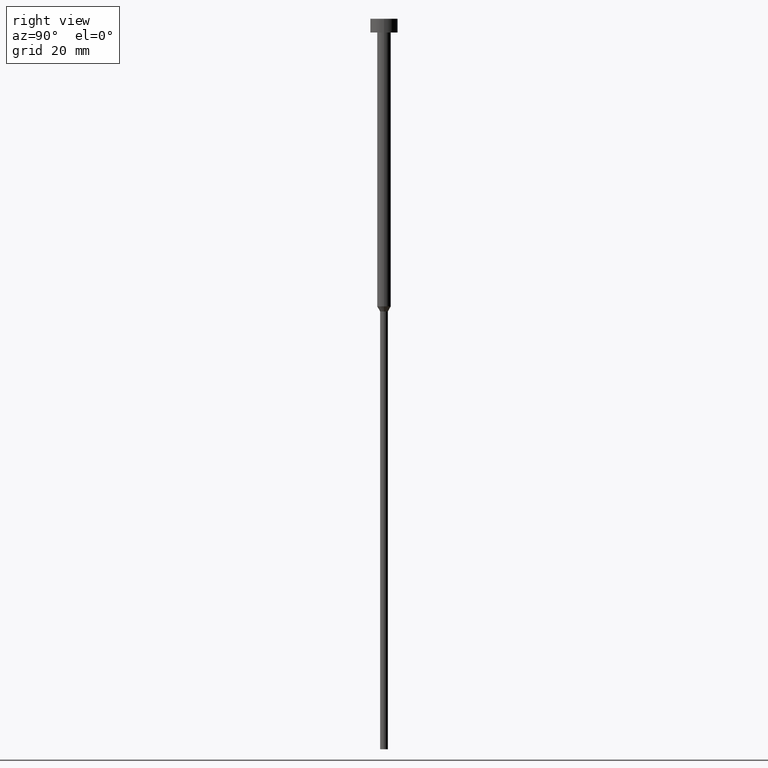
[diagram: clean part render]
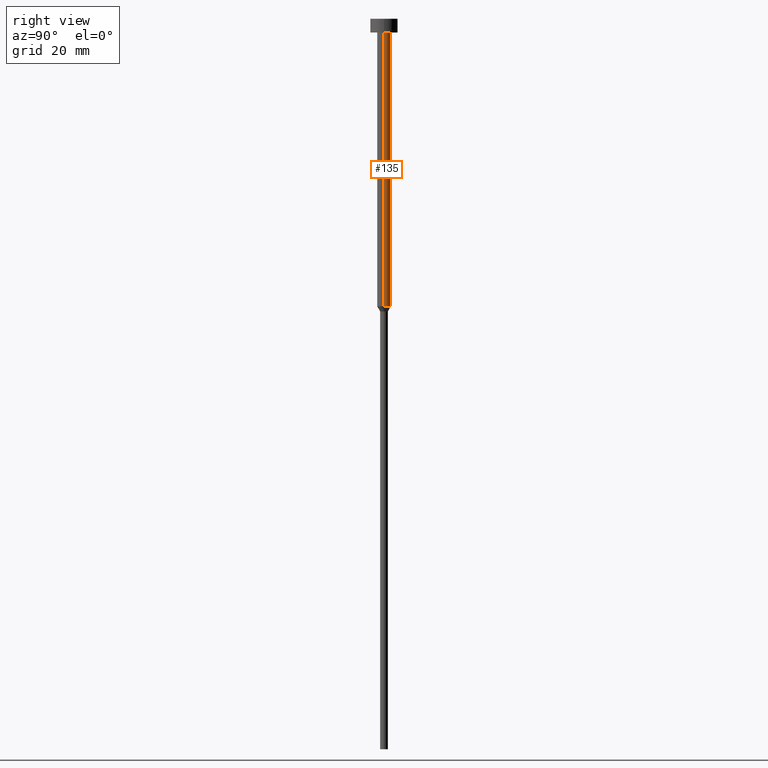
[diagram: same view with one face highlighted and labeled with its STEP entity id]
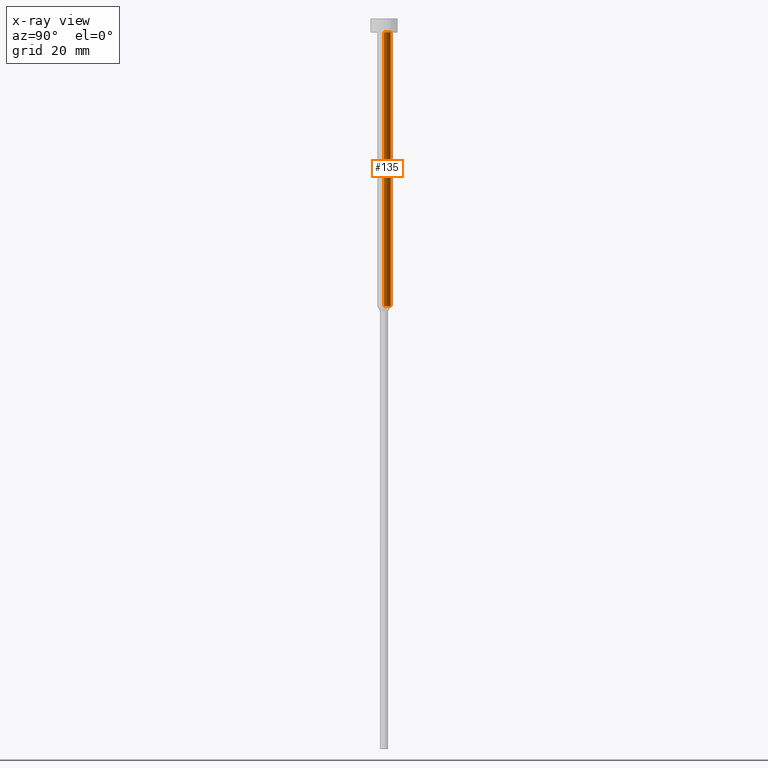
[diagram: x-ray of the same camera — body ghosted, the highlighted face saturated]
A machine part, right view. The second image highlights one B-rep face of the part: STEP entity #135.
The next image is the same camera in x-ray: the body ghosted, the highlighted face saturated — about 0% of this face is hidden behind the body in this view.
In plain terms, the highlighted cylindrical surface (edge-blend (fillet) strip) has radius 1.5 mm, axis along (-0, -0, 1).
Its self-contained STEP definition (entity closure, byte-faithful):
#6 = CARTESIAN_POINT ( 'NONE',  ( -1.500000000000000000, 1.836970198721029934E-16, 0.000000000000000000 ) ) ;
#10 = EDGE_CURVE ( 'NONE', #290, #165, #296, .T. ) ;
#18 = CARTESIAN_POINT ( 'NONE',  ( 0.000000000000000000, 0.000000000000000000, -3.000000000000000888 ) ) ;
#20 = EDGE_CURVE ( 'NONE', #290, #238, #250, .T. ) ;
#27 = DIRECTION ( 'NONE',  ( -0.000000000000000000, -0.000000000000000000, 1.000000000000000000 ) ) ;
#32 = CARTESIAN_POINT ( 'NONE',  ( -1.500000000000000000, 1.836970198721029934E-16, -63.00000000000000000 ) ) ;
#37 = DIRECTION ( 'NONE',  ( 1.000000000000000000, 0.000000000000000000, 0.000000000000000000 ) ) ;
#39 = DIRECTION ( 'NONE',  ( -0.000000000000000000, -0.000000000000000000, 1.000000000000000000 ) ) ;
#40 = EDGE_LOOP ( 'NONE', ( #210, #310, #266, #162 ) ) ;
#62 = AXIS2_PLACEMENT_3D ( 'NONE', #18, #281, #37 ) ;
#97 = AXIS2_PLACEMENT_3D ( 'NONE', #169, #143, #111 ) ;
#111 = DIRECTION ( 'NONE',  ( 1.000000000000000000, 0.000000000000000000, 0.000000000000000000 ) ) ;
#133 = CARTESIAN_POINT ( 'NONE',  ( -1.500000000000000000, 1.836970198721029934E-16, -3.000000000000000888 ) ) ;
#135 = ADVANCED_FACE ( 'NONE', ( #208 ), #263, .T. ) ;
#143 = DIRECTION ( 'NONE',  ( -0.000000000000000000, -0.000000000000000000, 1.000000000000000000 ) ) ;
#144 = EDGE_CURVE ( 'NONE', #165, #160, #216, .T. ) ;
#147 = DIRECTION ( 'NONE',  ( -0.000000000000000000, -0.000000000000000000, 1.000000000000000000 ) ) ;
#160 = VERTEX_POINT ( 'NONE', #133 ) ;
#162 = ORIENTED_EDGE ( 'NONE', *, *, #10, .F. ) ;
#165 = VERTEX_POINT ( 'NONE', #349 ) ;
#169 = CARTESIAN_POINT ( 'NONE',  ( 0.000000000000000000, 0.000000000000000000, -63.00000000000000000 ) ) ;
#202 = DIRECTION ( 'NONE',  ( 1.000000000000000000, 0.000000000000000000, 0.000000000000000000 ) ) ;
#208 = FACE_OUTER_BOUND ( 'NONE', #40, .T. ) ;
#210 = ORIENTED_EDGE ( 'NONE', *, *, #20, .T. ) ;
#216 = CIRCLE ( 'NONE', #62, 1.500000000000000000 ) ;
#220 = CARTESIAN_POINT ( 'NONE',  ( 1.500000000000000000, 0.000000000000000000, 0.000000000000000000 ) ) ;
#236 = VECTOR ( 'NONE', #27, 1000.000000000000000 ) ;
#238 = VERTEX_POINT ( 'NONE', #32 ) ;
#242 = EDGE_CURVE ( 'NONE', #238, #160, #334, .T. ) ;
#250 = CIRCLE ( 'NONE', #97, 1.500000000000000000 ) ;
#263 = CYLINDRICAL_SURFACE ( 'NONE', #327, 1.500000000000000000 ) ;
#266 = ORIENTED_EDGE ( 'NONE', *, *, #144, .F. ) ;
#270 = VECTOR ( 'NONE', #147, 1000.000000000000000 ) ;
#281 = DIRECTION ( 'NONE',  ( -0.000000000000000000, -0.000000000000000000, 1.000000000000000000 ) ) ;
#290 = VERTEX_POINT ( 'NONE', #304 ) ;
#296 = LINE ( 'NONE', #220, #236 ) ;
#304 = CARTESIAN_POINT ( 'NONE',  ( 1.500000000000000000, 0.000000000000000000, -63.00000000000000000 ) ) ;
#310 = ORIENTED_EDGE ( 'NONE', *, *, #242, .T. ) ;
#327 = AXIS2_PLACEMENT_3D ( 'NONE', #351, #39, #202 ) ;
#334 = LINE ( 'NONE', #6, #270 ) ;
#349 = CARTESIAN_POINT ( 'NONE',  ( 1.500000000000000000, 0.000000000000000000, -3.000000000000000888 ) ) ;
#351 = CARTESIAN_POINT ( 'NONE',  ( 0.000000000000000000, 0.000000000000000000, 0.000000000000000000 ) ) ;